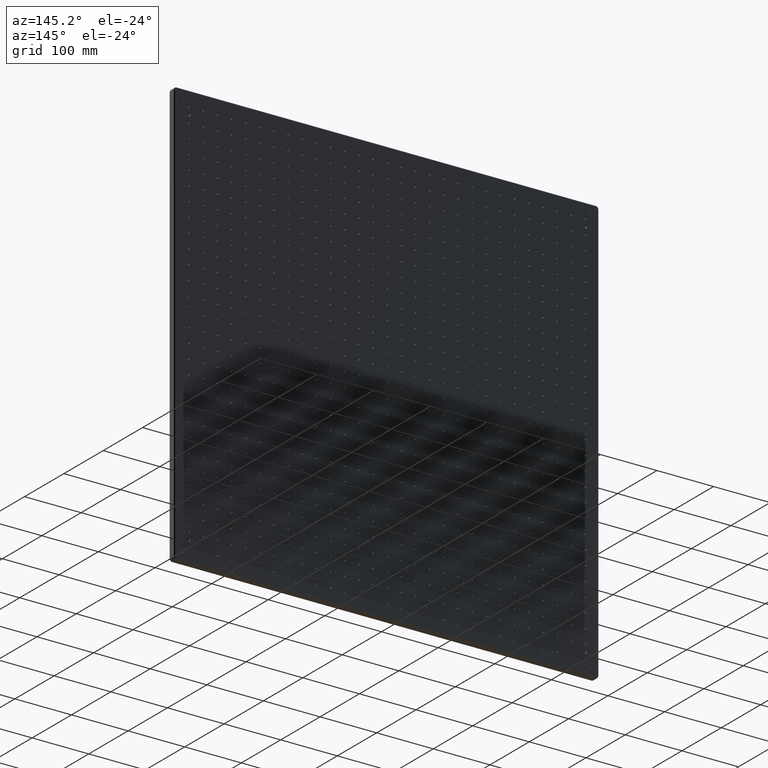
[diagram: clean part render]
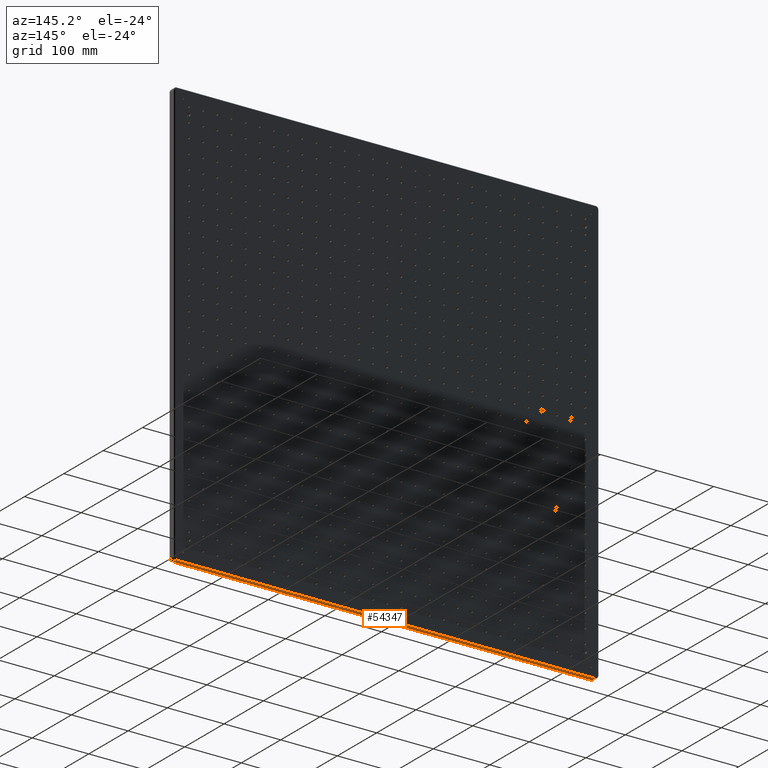
[diagram: same view with one face highlighted and labeled with its STEP entity id]
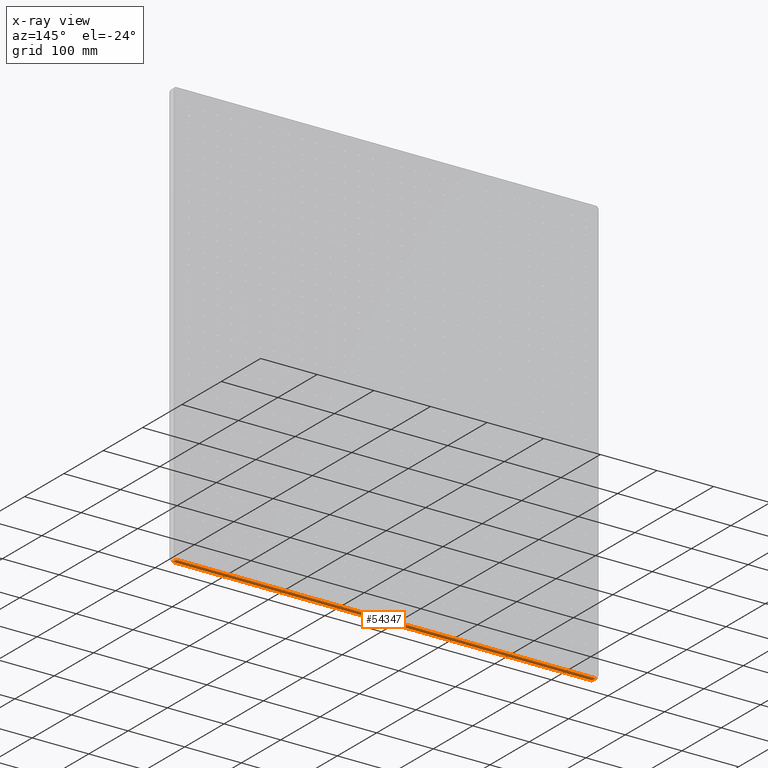
[diagram: x-ray of the same camera — body ghosted, the highlighted face saturated]
A machine part, auxiliary view. The second image highlights one B-rep face of the part: STEP entity #54347.
The next image is the same camera in x-ray: the body ghosted, the highlighted face saturated — about 0% of this face is hidden behind the body in this view.
In plain terms, the highlighted planar face has unit normal (0, 0, 1).
Its self-contained STEP definition (entity closure, byte-faithful):
#851 = LINE ( 'NONE', #1307, #51716 ) ;
#1307 = CARTESIAN_POINT ( 'NONE',  ( -370.0000000000001100, 2.000000000000000000, -374.9999999999998900 ) ) ;
#2135 = VECTOR ( 'NONE', #11906, 1000.000000000000000 ) ;
#2296 = CARTESIAN_POINT ( 'NONE',  ( -370.0000000000001100, 13.00000000000000000, -374.9999999999998900 ) ) ;
#2512 = EDGE_LOOP ( 'NONE', ( #43082, #53770, #57010, #18090 ) ) ;
#3618 = EDGE_CURVE ( 'NONE', #37652, #10307, #15296, .T. ) ;
#6845 = CARTESIAN_POINT ( 'NONE',  ( 370.0000000000001100, 13.00000000000000000, -374.9999999999998900 ) ) ;
#7127 = CARTESIAN_POINT ( 'NONE',  ( 370.0000000000001100, 11.00000000000000000, -374.9999999999998900 ) ) ;
#7616 = EDGE_CURVE ( 'NONE', #23865, #23930, #851, .T. ) ;
#10307 = VERTEX_POINT ( 'NONE', #18197 ) ;
#11906 = DIRECTION ( 'NONE',  ( 1.000000000000000000, -0.0000000000000000000, -0.0000000000000000000 ) ) ;
#14418 = DIRECTION ( 'NONE',  ( 1.000000000000000000, 0.0000000000000000000, -0.0000000000000000000 ) ) ;
#15296 = LINE ( 'NONE', #7127, #2135 ) ;
#16781 = EDGE_CURVE ( 'NONE', #37652, #23930, #59551, .T. ) ;
#18090 = ORIENTED_EDGE ( 'NONE', *, *, #3618, .T. ) ;
#18197 = CARTESIAN_POINT ( 'NONE',  ( 370.0000000000001100, 11.00000000000000000, -374.9999999999998900 ) ) ;
#20755 = CARTESIAN_POINT ( 'NONE',  ( -370.0000000000001100, 11.00000000000000000, -374.9999999999998900 ) ) ;
#21724 = DIRECTION ( 'NONE',  ( -0.0000000000000000000, -1.000000000000000000, -0.0000000000000000000 ) ) ;
#23865 = VERTEX_POINT ( 'NONE', #42703 ) ;
#23930 = VERTEX_POINT ( 'NONE', #48301 ) ;
#29003 = CARTESIAN_POINT ( 'NONE',  ( -370.0000000000001100, 13.00000000000000000, -374.9999999999998900 ) ) ;
#30683 = FACE_OUTER_BOUND ( 'NONE', #2512, .T. ) ;
#33408 = VECTOR ( 'NONE', #36765, 1000.000000000000000 ) ;
#34952 = AXIS2_PLACEMENT_3D ( 'NONE', #29003, #43838, #14418 ) ;
#36765 = DIRECTION ( 'NONE',  ( -0.0000000000000000000, -1.000000000000000000, -0.0000000000000000000 ) ) ;
#37652 = VERTEX_POINT ( 'NONE', #20755 ) ;
#42703 = CARTESIAN_POINT ( 'NONE',  ( 370.0000000000001100, 2.000000000000001800, -374.9999999999998900 ) ) ;
#43082 = ORIENTED_EDGE ( 'NONE', *, *, #56400, .T. ) ;
#43838 = DIRECTION ( 'NONE',  ( 0.0000000000000000000, 0.0000000000000000000, 1.000000000000000000 ) ) ;
#45796 = LINE ( 'NONE', #6845, #57326 ) ;
#48301 = CARTESIAN_POINT ( 'NONE',  ( -370.0000000000001100, 2.000000000000003600, -374.9999999999998900 ) ) ;
#48602 = PLANE ( 'NONE',  #34952 ) ;
#50615 = DIRECTION ( 'NONE',  ( -1.000000000000000000, 0.0000000000000000000, 0.0000000000000000000 ) ) ;
#51716 = VECTOR ( 'NONE', #50615, 1000.000000000000000 ) ;
#53770 = ORIENTED_EDGE ( 'NONE', *, *, #7616, .T. ) ;
#54347 = ADVANCED_FACE ( 'NONE', ( #30683 ), #48602, .F. ) ;
#56400 = EDGE_CURVE ( 'NONE', #10307, #23865, #45796, .T. ) ;
#57010 = ORIENTED_EDGE ( 'NONE', *, *, #16781, .F. ) ;
#57326 = VECTOR ( 'NONE', #21724, 1000.000000000000000 ) ;
#59551 = LINE ( 'NONE', #2296, #33408 ) ;